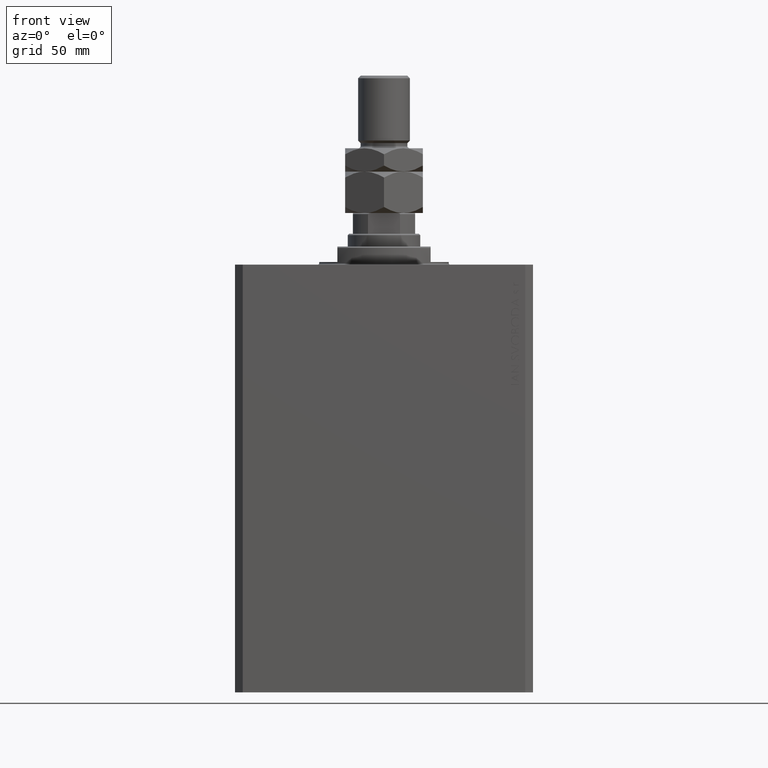
[diagram: clean part render]
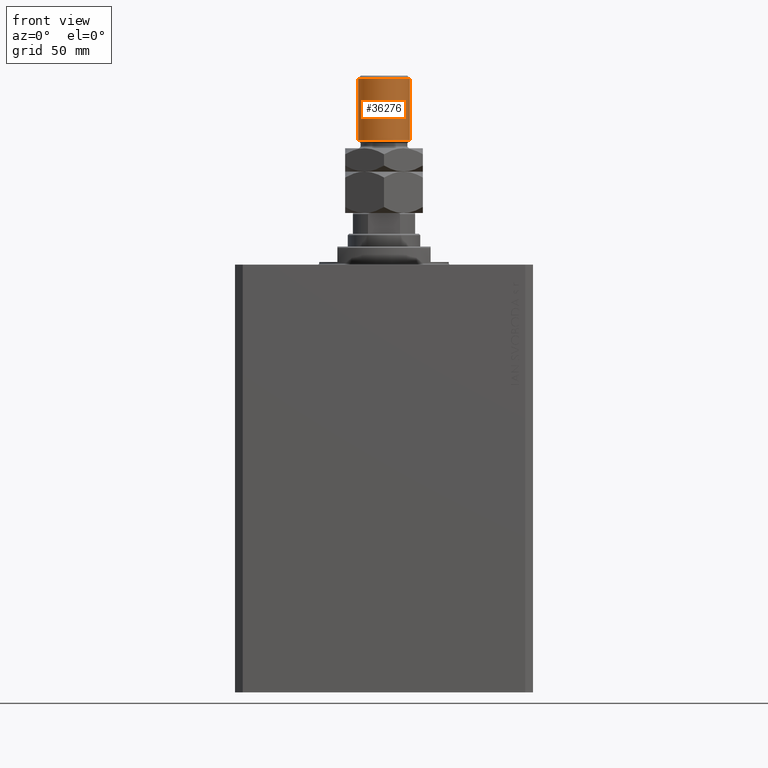
[diagram: same view with one face highlighted and labeled with its STEP entity id]
A machine part, front view. The second image highlights one B-rep face of the part: STEP entity #36276.
In plain terms, the highlighted cylindrical surface (edge-blend (fillet) strip) has radius 10 mm, axis along (-0, -0, -1).
Its self-contained STEP definition (entity closure, byte-faithful):
#546 = VERTEX_POINT ( 'NONE', #13647 ) ;
#2717 = EDGE_CURVE ( 'NONE', #21221, #18921, #32243, .T. ) ;
#3372 = CIRCLE ( 'NONE', #41223, 10.00000000000000000 ) ;
#3904 = CARTESIAN_POINT ( 'NONE',  ( 10.00000000000000000, 1.224646799147353059E-15, 52.00000000000004974 ) ) ;
#8574 = FACE_OUTER_BOUND ( 'NONE', #19447, .T. ) ;
#10958 = AXIS2_PLACEMENT_3D ( 'NONE', #43719, #33088, #29133 ) ;
#11902 = LINE ( 'NONE', #35106, #21847 ) ;
#12888 = DIRECTION ( 'NONE',  ( -0.000000000000000000, -0.000000000000000000, 1.000000000000000000 ) ) ;
#13647 = CARTESIAN_POINT ( 'NONE',  ( -10.00000000000000000, 0.000000000000000000, 28.00000000000002487 ) ) ;
#13812 = DIRECTION ( 'NONE',  ( -0.000000000000000000, -0.000000000000000000, -1.000000000000000000 ) ) ;
#14789 = EDGE_CURVE ( 'NONE', #546, #32106, #3372, .T. ) ;
#14831 = DIRECTION ( 'NONE',  ( 1.000000000000000000, 0.000000000000000000, 0.000000000000000000 ) ) ;
#15058 = EDGE_CURVE ( 'NONE', #18921, #546, #44423, .T. ) ;
#15209 = AXIS2_PLACEMENT_3D ( 'NONE', #46360, #35237, #20184 ) ;
#16589 = CARTESIAN_POINT ( 'NONE',  ( 0.000000000000000000, 0.000000000000000000, 28.00000000000002487 ) ) ;
#17336 = ORIENTED_EDGE ( 'NONE', *, *, #47047, .F. ) ;
#18921 = VERTEX_POINT ( 'NONE', #25122 ) ;
#19447 = EDGE_LOOP ( 'NONE', ( #17336, #39898, #39318, #39161 ) ) ;
#20184 = DIRECTION ( 'NONE',  ( -1.000000000000000000, 0.000000000000000000, 0.000000000000000000 ) ) ;
#21221 = VERTEX_POINT ( 'NONE', #3904 ) ;
#21847 = VECTOR ( 'NONE', #46722, 1000.000000000000000 ) ;
#25122 = CARTESIAN_POINT ( 'NONE',  ( -10.00000000000000000, 0.000000000000000000, 52.00000000000004974 ) ) ;
#26287 = CARTESIAN_POINT ( 'NONE',  ( 10.00000000000000000, 1.224646799147353059E-15, 28.00000000000002487 ) ) ;
#29133 = DIRECTION ( 'NONE',  ( 1.000000000000000000, 0.000000000000000000, 0.000000000000000000 ) ) ;
#30146 = VECTOR ( 'NONE', #13812, 1000.000000000000000 ) ;
#32106 = VERTEX_POINT ( 'NONE', #26287 ) ;
#32243 = CIRCLE ( 'NONE', #10958, 10.00000000000000000 ) ;
#33088 = DIRECTION ( 'NONE',  ( 0.000000000000000000, 0.000000000000000000, -1.000000000000000000 ) ) ;
#35106 = CARTESIAN_POINT ( 'NONE',  ( 10.00000000000000000, 1.224646799147353059E-15, 53.00000000000000711 ) ) ;
#35237 = DIRECTION ( 'NONE',  ( -0.000000000000000000, -0.000000000000000000, -1.000000000000000000 ) ) ;
#36276 = ADVANCED_FACE ( 'NONE', ( #8574 ), #43137, .T. ) ;
#39161 = ORIENTED_EDGE ( 'NONE', *, *, #14789, .T. ) ;
#39318 = ORIENTED_EDGE ( 'NONE', *, *, #15058, .T. ) ;
#39898 = ORIENTED_EDGE ( 'NONE', *, *, #2717, .T. ) ;
#40951 = CARTESIAN_POINT ( 'NONE',  ( -10.00000000000000000, 0.000000000000000000, 53.00000000000000711 ) ) ;
#41223 = AXIS2_PLACEMENT_3D ( 'NONE', #16589, #12888, #14831 ) ;
#43137 = CYLINDRICAL_SURFACE ( 'NONE', #15209, 10.00000000000000000 ) ;
#43719 = CARTESIAN_POINT ( 'NONE',  ( 0.000000000000000000, 0.000000000000000000, 52.00000000000004974 ) ) ;
#44423 = LINE ( 'NONE', #40951, #30146 ) ;
#46360 = CARTESIAN_POINT ( 'NONE',  ( 0.000000000000000000, 0.000000000000000000, 53.00000000000000711 ) ) ;
#46722 = DIRECTION ( 'NONE',  ( -0.000000000000000000, -0.000000000000000000, -1.000000000000000000 ) ) ;
#47047 = EDGE_CURVE ( 'NONE', #21221, #32106, #11902, .T. ) ;